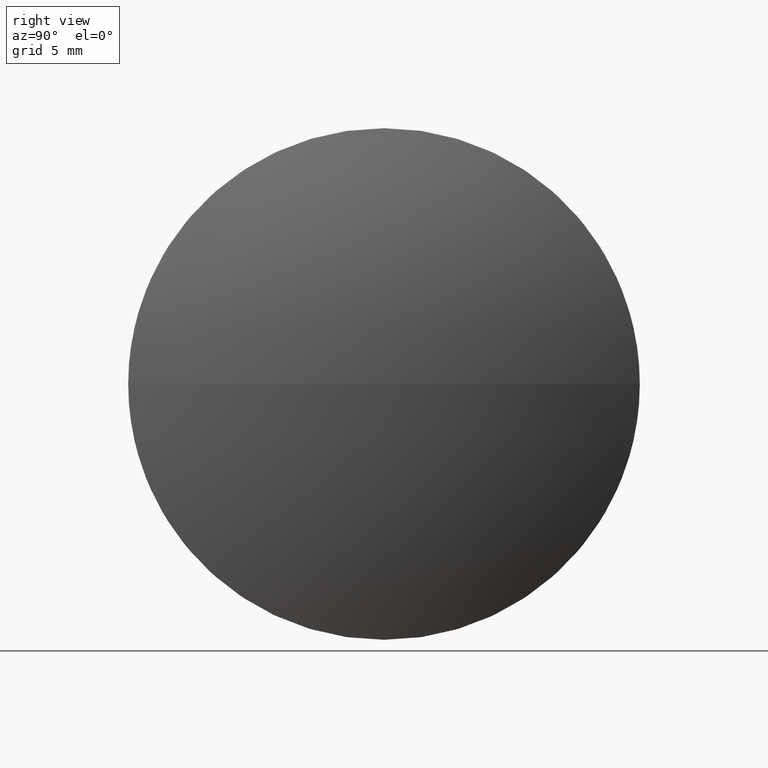
[diagram: clean part render]
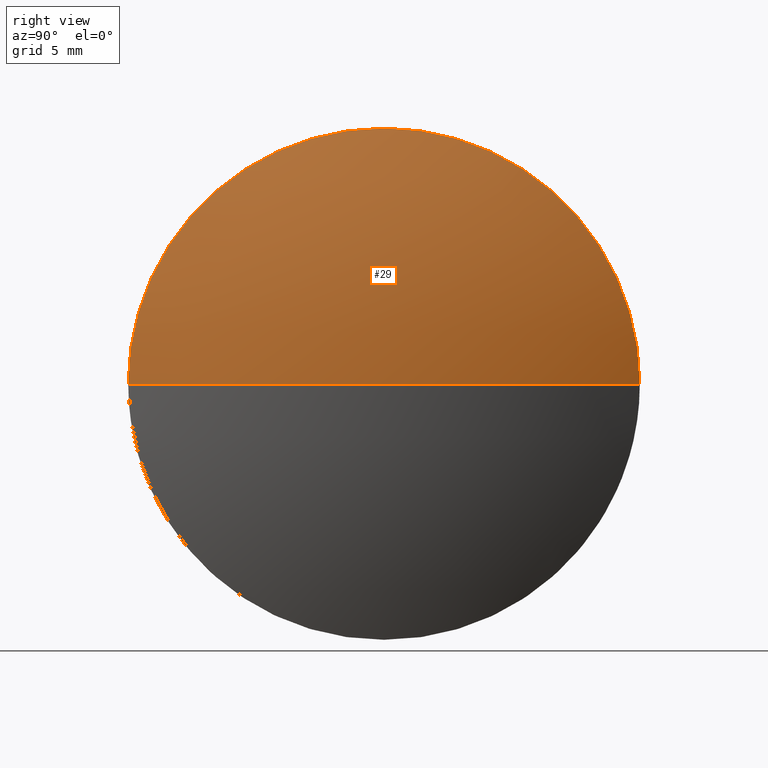
[diagram: same view with one face highlighted and labeled with its STEP entity id]
A machine part, right view. The second image highlights one B-rep face of the part: STEP entity #29.
In plain terms, the highlighted spherical surface has radius 25.8806 mm.
Its self-contained STEP definition (entity closure, byte-faithful):
#7 = DIRECTION ( 'NONE',  ( 0.0000000000000000000, 1.000000000000000000, 0.0000000000000000000 ) ) ;
#14 = AXIS2_PLACEMENT_3D ( 'NONE', #33, #163, #90 ) ;
#25 = DIRECTION ( 'NONE',  ( 0.0000000000000000000, 1.000000000000000000, 1.224646799147353200E-016 ) ) ;
#26 = EDGE_LOOP ( 'NONE', ( #47, #37, #174, #164 ) ) ;
#29 = ADVANCED_FACE ( 'NONE', ( #177 ), #114, .T. ) ;
#31 = AXIS2_PLACEMENT_3D ( 'NONE', #93, #149, #54 ) ;
#33 = CARTESIAN_POINT ( 'NONE',  ( 553.4565742364943600, 125.1720671761335200, 0.0000000000000000000 ) ) ;
#37 = ORIENTED_EDGE ( 'NONE', *, *, #158, .T. ) ;
#38 = CARTESIAN_POINT ( 'NONE',  ( 553.4565742364943600, 135.1720671761334500, 0.0000000000000000000 ) ) ;
#41 = CARTESIAN_POINT ( 'NONE',  ( 529.5859523459470200, 125.1720671761334400, 0.0000000000000000000 ) ) ;
#47 = ORIENTED_EDGE ( 'NONE', *, *, #89, .F. ) ;
#54 = DIRECTION ( 'NONE',  ( 1.000000000000000000, 0.0000000000000000000, 0.0000000000000000000 ) ) ;
#60 = CIRCLE ( 'NONE', #31, 25.88062189054729600 ) ;
#71 = CIRCLE ( 'NONE', #140, 25.88062189054732400 ) ;
#74 = EDGE_CURVE ( 'NONE', #170, #105, #80, .T. ) ;
#78 = CARTESIAN_POINT ( 'NONE',  ( 555.4665742364943500, 125.1720671761334400, 0.0000000000000000000 ) ) ;
#80 = CIRCLE ( 'NONE', #14, 9.999999999999980500 ) ;
#81 = AXIS2_PLACEMENT_3D ( 'NONE', #102, #176, #7 ) ;
#89 = EDGE_CURVE ( 'NONE', #130, #170, #71, .T. ) ;
#90 = DIRECTION ( 'NONE',  ( 0.0000000000000000000, 0.0000000000000000000, 1.000000000000000000 ) ) ;
#93 = CARTESIAN_POINT ( 'NONE',  ( 529.5859523459470200, 125.1720671761334400, 0.0000000000000000000 ) ) ;
#95 = AXIS2_PLACEMENT_3D ( 'NONE', #181, #107, #184 ) ;
#102 = CARTESIAN_POINT ( 'NONE',  ( 529.5859523459470200, 125.1720671761334400, 0.0000000000000000000 ) ) ;
#103 = EDGE_CURVE ( 'NONE', #105, #183, #168, .T. ) ;
#105 = VERTEX_POINT ( 'NONE', #167 ) ;
#107 = DIRECTION ( 'NONE',  ( -1.000000000000000000, -0.0000000000000000000, -0.0000000000000000000 ) ) ;
#114 = SPHERICAL_SURFACE ( 'NONE', #81, 25.88062189054732800 ) ;
#119 = CARTESIAN_POINT ( 'NONE',  ( 553.4565742364943600, 115.1720671761335000, -1.224646799147346600E-015 ) ) ;
#130 = VERTEX_POINT ( 'NONE', #78 ) ;
#137 = DIRECTION ( 'NONE',  ( 0.0000000000000000000, 1.224646799147353200E-016, -1.000000000000000000 ) ) ;
#140 = AXIS2_PLACEMENT_3D ( 'NONE', #41, #137, #25 ) ;
#149 = DIRECTION ( 'NONE',  ( -0.0000000000000000000, 0.0000000000000000000, 1.000000000000000000 ) ) ;
#158 = EDGE_CURVE ( 'NONE', #130, #183, #60, .T. ) ;
#163 = DIRECTION ( 'NONE',  ( -1.000000000000000000, -0.0000000000000000000, -0.0000000000000000000 ) ) ;
#164 = ORIENTED_EDGE ( 'NONE', *, *, #74, .F. ) ;
#167 = CARTESIAN_POINT ( 'NONE',  ( 553.4565742364943600, 125.1720671761335200, 9.999999999999980500 ) ) ;
#168 = CIRCLE ( 'NONE', #95, 9.999999999999980500 ) ;
#170 = VERTEX_POINT ( 'NONE', #119 ) ;
#174 = ORIENTED_EDGE ( 'NONE', *, *, #103, .F. ) ;
#176 = DIRECTION ( 'NONE',  ( -0.0000000000000000000, 0.0000000000000000000, -1.000000000000000000 ) ) ;
#177 = FACE_OUTER_BOUND ( 'NONE', #26, .T. ) ;
#181 = CARTESIAN_POINT ( 'NONE',  ( 553.4565742364943600, 125.1720671761335200, 0.0000000000000000000 ) ) ;
#183 = VERTEX_POINT ( 'NONE', #38 ) ;
#184 = DIRECTION ( 'NONE',  ( 0.0000000000000000000, 0.0000000000000000000, 1.000000000000000000 ) ) ;